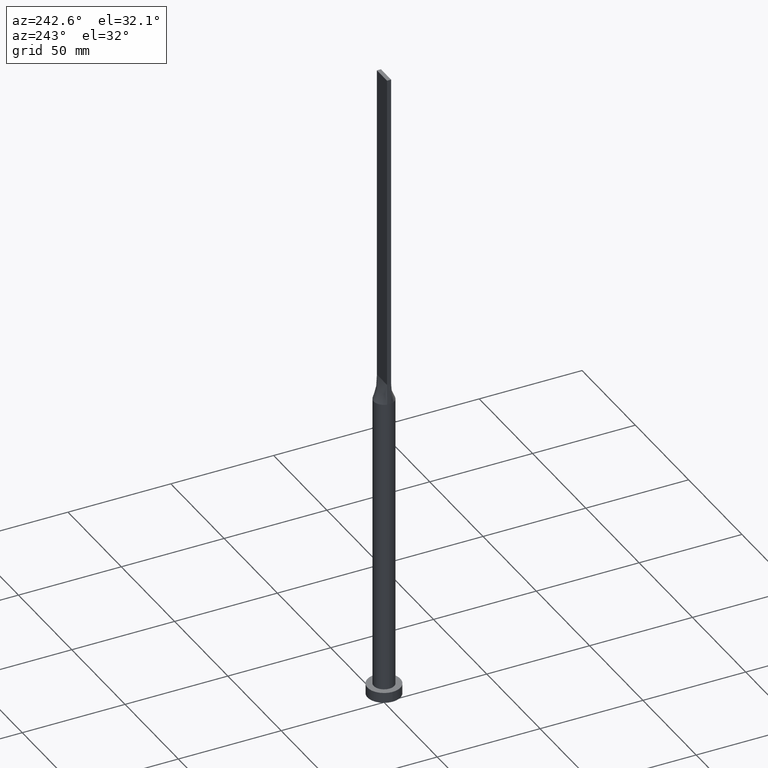
[diagram: clean part render]
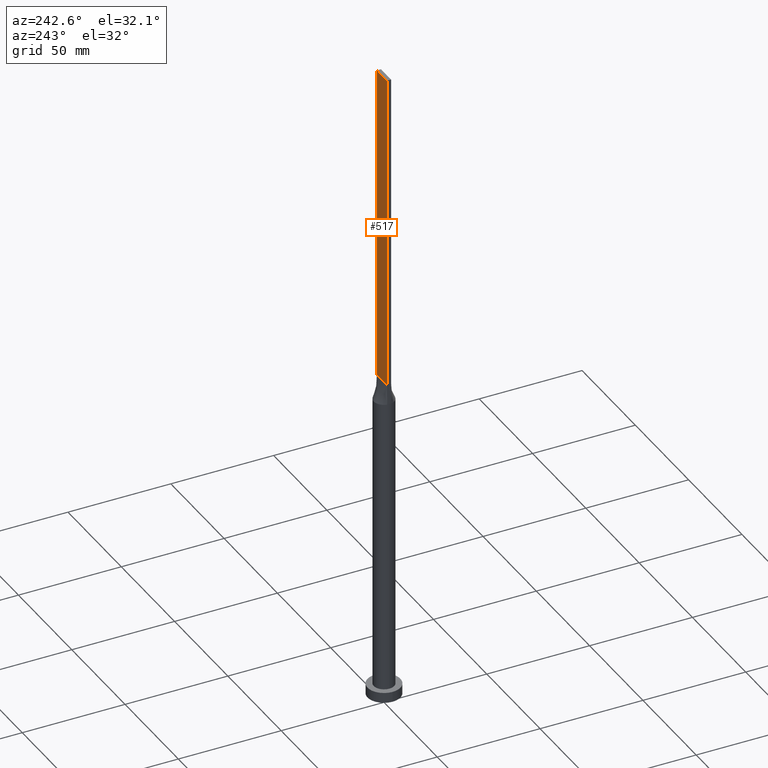
[diagram: same view with one face highlighted and labeled with its STEP entity id]
A machine part, auxiliary view. The second image highlights one B-rep face of the part: STEP entity #517.
In plain terms, the highlighted planar face has unit normal (0, -1, 0).
Its self-contained STEP definition (entity closure, byte-faithful):
#3 = ORIENTED_EDGE ( 'NONE', *, *, #496, .F. ) ;
#5 = VERTEX_POINT ( 'NONE', #431 ) ;
#32 = ORIENTED_EDGE ( 'NONE', *, *, #369, .T. ) ;
#57 = CARTESIAN_POINT ( 'NONE',  ( -4.750000000000000000, 1.000000000000000000, 315.0000000000000000 ) ) ;
#64 = CARTESIAN_POINT ( 'NONE',  ( 4.750000000000000000, 1.000000000000000000, 315.0000000000000000 ) ) ;
#79 = VERTEX_POINT ( 'NONE', #340 ) ;
#90 = LINE ( 'NONE', #331, #138 ) ;
#91 = VECTOR ( 'NONE', #515, 1000.000000000000000 ) ;
#104 = DIRECTION ( 'NONE',  ( -0.000000000000000000, -0.000000000000000000, -1.000000000000000000 ) ) ;
#138 = VECTOR ( 'NONE', #412, 1000.000000000000000 ) ;
#241 = DIRECTION ( 'NONE',  ( -0.000000000000000000, -0.000000000000000000, -1.000000000000000000 ) ) ;
#257 = DIRECTION ( 'NONE',  ( 0.000000000000000000, -1.000000000000000000, 0.000000000000000000 ) ) ;
#275 = CARTESIAN_POINT ( 'NONE',  ( 4.750000000000000000, 1.000000000000000000, 315.0000000000000000 ) ) ;
#286 = LINE ( 'NONE', #57, #557 ) ;
#322 = VECTOR ( 'NONE', #104, 1000.000000000000000 ) ;
#328 = LINE ( 'NONE', #275, #91 ) ;
#331 = CARTESIAN_POINT ( 'NONE',  ( -4.750000000000000000, 1.000000000000000000, 160.0000000000000000 ) ) ;
#340 = CARTESIAN_POINT ( 'NONE',  ( -4.750000000000000000, 1.000000000000000000, 315.0000000000000000 ) ) ;
#343 = EDGE_CURVE ( 'NONE', #79, #5, #286, .T. ) ;
#363 = CARTESIAN_POINT ( 'NONE',  ( 4.750000000000000000, 1.000000000000000000, 315.0000000000000000 ) ) ;
#369 = EDGE_CURVE ( 'NONE', #396, #479, #467, .T. ) ;
#372 = CARTESIAN_POINT ( 'NONE',  ( 4.750000000000000000, 1.000000000000000000, 160.0000000000000000 ) ) ;
#389 = EDGE_CURVE ( 'NONE', #479, #5, #90, .T. ) ;
#390 = AXIS2_PLACEMENT_3D ( 'NONE', #64, #257, #427 ) ;
#396 = VERTEX_POINT ( 'NONE', #363 ) ;
#410 = ORIENTED_EDGE ( 'NONE', *, *, #343, .F. ) ;
#412 = DIRECTION ( 'NONE',  ( -1.000000000000000000, -0.000000000000000000, -0.000000000000000000 ) ) ;
#427 = DIRECTION ( 'NONE',  ( 0.000000000000000000, -0.000000000000000000, -1.000000000000000000 ) ) ;
#431 = CARTESIAN_POINT ( 'NONE',  ( -4.750000000000000000, 1.000000000000000000, 160.0000000000000000 ) ) ;
#462 = EDGE_LOOP ( 'NONE', ( #547, #410, #3, #32 ) ) ;
#467 = LINE ( 'NONE', #520, #322 ) ;
#479 = VERTEX_POINT ( 'NONE', #372 ) ;
#496 = EDGE_CURVE ( 'NONE', #396, #79, #328, .T. ) ;
#515 = DIRECTION ( 'NONE',  ( -1.000000000000000000, 0.000000000000000000, 0.000000000000000000 ) ) ;
#517 = ADVANCED_FACE ( 'NONE', ( #529 ), #531, .F. ) ;
#520 = CARTESIAN_POINT ( 'NONE',  ( 4.750000000000000000, 1.000000000000000000, 315.0000000000000000 ) ) ;
#529 = FACE_OUTER_BOUND ( 'NONE', #462, .T. ) ;
#531 = PLANE ( 'NONE',  #390 ) ;
#547 = ORIENTED_EDGE ( 'NONE', *, *, #389, .T. ) ;
#557 = VECTOR ( 'NONE', #241, 1000.000000000000000 ) ;